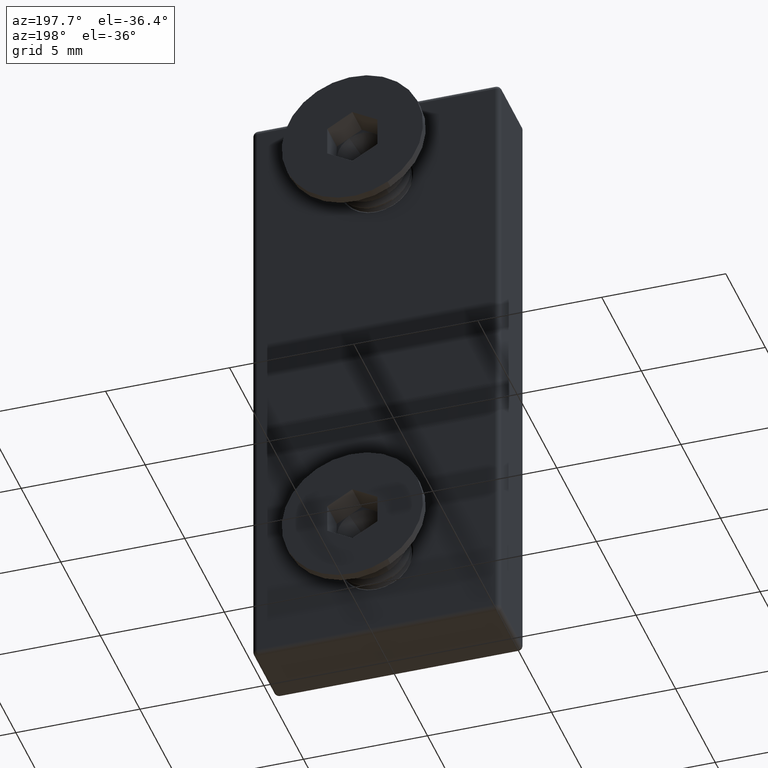
[diagram: clean part render]
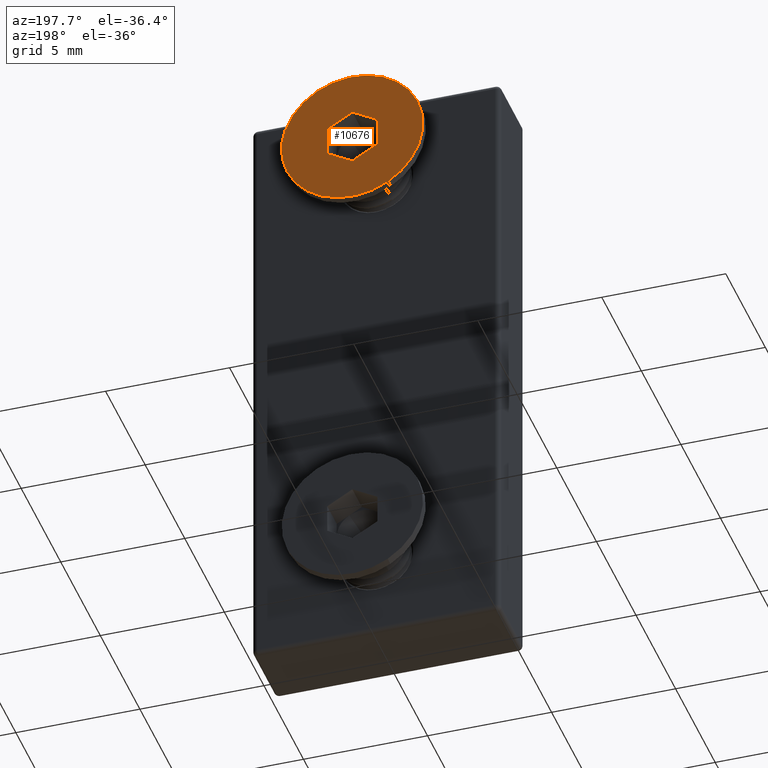
[diagram: same view with one face highlighted and labeled with its STEP entity id]
A machine part, auxiliary view. The second image highlights one B-rep face of the part: STEP entity #10676.
In plain terms, the highlighted planar face has unit normal (0, 1, 0).
Its self-contained STEP definition (entity closure, byte-faithful):
#47 = EDGE_CURVE ( 'NONE', #12261, #3351, #2192, .T. ) ;
#74 = VERTEX_POINT ( 'NONE', #12655 ) ;
#301 = DIRECTION ( 'NONE',  ( -1.000000000000000000, 0.0000000000000000000, 0.0000000000000000000 ) ) ;
#599 = EDGE_CURVE ( 'NONE', #10757, #11627, #731, .T. ) ;
#622 = ORIENTED_EDGE ( 'NONE', *, *, #47, .T. ) ;
#695 = DIRECTION ( 'NONE',  ( 0.0000000000000000000, -0.4999999999999995000, 0.8660254037844389300 ) ) ;
#731 = CIRCLE ( 'NONE', #1889, 2.850000000000041800 ) ;
#739 = ORIENTED_EDGE ( 'NONE', *, *, #4268, .T. ) ;
#837 = DIRECTION ( 'NONE',  ( 0.0000000000000000000, -5.551115123125701400E-017, 1.000000000000000000 ) ) ;
#872 = VERTEX_POINT ( 'NONE', #6641 ) ;
#928 = ORIENTED_EDGE ( 'NONE', *, *, #1771, .T. ) ;
#1190 = DIRECTION ( 'NONE',  ( 0.0000000000000000000, -5.551115123125701400E-017, 1.000000000000000000 ) ) ;
#1339 = EDGE_LOOP ( 'NONE', ( #9325, #10792 ) ) ;
#1367 = LINE ( 'NONE', #6488, #3752 ) ;
#1771 = EDGE_CURVE ( 'NONE', #10045, #74, #11079, .T. ) ;
#1830 = DIRECTION ( 'NONE',  ( 0.0000000000000000000, 1.000000000000000000, 4.440892098500565000E-016 ) ) ;
#1889 = AXIS2_PLACEMENT_3D ( 'NONE', #3603, #10754, #6472 ) ;
#2192 = LINE ( 'NONE', #4576, #9993 ) ;
#2586 = EDGE_CURVE ( 'NONE', #11627, #10757, #10328, .T. ) ;
#2826 = VECTOR ( 'NONE', #4001, 1000.000000000000000 ) ;
#2830 = EDGE_CURVE ( 'NONE', #9014, #12261, #6342, .T. ) ;
#3351 = VERTEX_POINT ( 'NONE', #4191 ) ;
#3382 = CARTESIAN_POINT ( 'NONE',  ( 0.0000000000000000000, 0.0000000000000000000, 0.0000000000000000000 ) ) ;
#3603 = CARTESIAN_POINT ( 'NONE',  ( 0.0000000000000000000, 0.0000000000000000000, 0.0000000000000000000 ) ) ;
#3665 = CARTESIAN_POINT ( 'NONE',  ( 0.0000000000000000000, -0.5831237718815209800, -1.010000000000000500 ) ) ;
#3752 = VECTOR ( 'NONE', #7524, 999.9999999999998900 ) ;
#4001 = DIRECTION ( 'NONE',  ( 0.0000000000000000000, 0.5000000000000004400, 0.8660254037844383700 ) ) ;
#4191 = CARTESIAN_POINT ( 'NONE',  ( 0.0000000000000000000, -1.166247543763041100, 0.0000000000000000000 ) ) ;
#4268 = EDGE_CURVE ( 'NONE', #872, #9014, #7885, .T. ) ;
#4576 = CARTESIAN_POINT ( 'NONE',  ( 0.0000000000000000000, -0.5831237718815166500, 1.010000000000016000 ) ) ;
#5165 = VECTOR ( 'NONE', #695, 1000.000000000000100 ) ;
#5211 = LINE ( 'NONE', #7077, #2826 ) ;
#5397 = CARTESIAN_POINT ( 'NONE',  ( 0.0000000000000000000, -1.582067810090848100E-016, 2.850000000000041800 ) ) ;
#5669 = FACE_OUTER_BOUND ( 'NONE', #1339, .T. ) ;
#5922 = DIRECTION ( 'NONE',  ( 0.0000000000000000000, -1.000000000000000000, -5.551115123125701400E-017 ) ) ;
#6306 = EDGE_LOOP ( 'NONE', ( #622, #6513, #928, #12768, #739, #6706 ) ) ;
#6342 = LINE ( 'NONE', #10866, #10803 ) ;
#6435 = VECTOR ( 'NONE', #1830, 1000.000000000000000 ) ;
#6472 = DIRECTION ( 'NONE',  ( 0.0000000000000000000, -5.551115123125701400E-017, 1.000000000000000000 ) ) ;
#6488 = CARTESIAN_POINT ( 'NONE',  ( 0.0000000000000000000, -1.166247543763041100, 0.0000000000000000000 ) ) ;
#6513 = ORIENTED_EDGE ( 'NONE', *, *, #9937, .T. ) ;
#6641 = CARTESIAN_POINT ( 'NONE',  ( 0.0000000000000000000, 1.166247543763068400, 8.673617379884035500E-015 ) ) ;
#6706 = ORIENTED_EDGE ( 'NONE', *, *, #2830, .T. ) ;
#6985 = CARTESIAN_POINT ( 'NONE',  ( 0.0000000000000000000, 1.166247543763068400, 8.673617379884035500E-015 ) ) ;
#7077 = CARTESIAN_POINT ( 'NONE',  ( 0.0000000000000000000, 0.5831237718815470700, -1.010000000000000500 ) ) ;
#7524 = DIRECTION ( 'NONE',  ( 0.0000000000000000000, 0.4999999999999993900, -0.8660254037844390400 ) ) ;
#7631 = DIRECTION ( 'NONE',  ( 0.0000000000000000000, -0.4999999999999998900, -0.8660254037844387100 ) ) ;
#7835 = AXIS2_PLACEMENT_3D ( 'NONE', #3382, #301, #1190 ) ;
#7885 = LINE ( 'NONE', #6985, #5165 ) ;
#8470 = CARTESIAN_POINT ( 'NONE',  ( 0.0000000000000000000, 0.5831237718815496200, 1.010000000000019500 ) ) ;
#8900 = DIRECTION ( 'NONE',  ( -1.000000000000000000, 0.0000000000000000000, 0.0000000000000000000 ) ) ;
#9014 = VERTEX_POINT ( 'NONE', #8470 ) ;
#9325 = ORIENTED_EDGE ( 'NONE', *, *, #599, .T. ) ;
#9412 = EDGE_CURVE ( 'NONE', #74, #872, #5211, .T. ) ;
#9430 = AXIS2_PLACEMENT_3D ( 'NONE', #11021, #8900, #837 ) ;
#9864 = CARTESIAN_POINT ( 'NONE',  ( 0.0000000000000000000, 5.072311187660783200E-016, -2.850000000000000100 ) ) ;
#9937 = EDGE_CURVE ( 'NONE', #3351, #10045, #1367, .T. ) ;
#9951 = CARTESIAN_POINT ( 'NONE',  ( 0.0000000000000000000, -0.5831237718815209800, -1.010000000000000500 ) ) ;
#9993 = VECTOR ( 'NONE', #7631, 1000.000000000000000 ) ;
#10045 = VERTEX_POINT ( 'NONE', #3665 ) ;
#10291 = FACE_BOUND ( 'NONE', #6306, .T. ) ;
#10328 = CIRCLE ( 'NONE', #9430, 2.850000000000041800 ) ;
#10676 = ADVANCED_FACE ( 'NONE', ( #5669, #10291 ), #12468, .T. ) ;
#10734 = CARTESIAN_POINT ( 'NONE',  ( 0.0000000000000000000, -0.5831237718815166500, 1.010000000000016000 ) ) ;
#10754 = DIRECTION ( 'NONE',  ( -1.000000000000000000, 0.0000000000000000000, 0.0000000000000000000 ) ) ;
#10757 = VERTEX_POINT ( 'NONE', #5397 ) ;
#10792 = ORIENTED_EDGE ( 'NONE', *, *, #2586, .T. ) ;
#10803 = VECTOR ( 'NONE', #5922, 1000.000000000000000 ) ;
#10866 = CARTESIAN_POINT ( 'NONE',  ( 0.0000000000000000000, 0.5831237718815496200, 1.010000000000019500 ) ) ;
#11021 = CARTESIAN_POINT ( 'NONE',  ( 0.0000000000000000000, 0.0000000000000000000, 0.0000000000000000000 ) ) ;
#11079 = LINE ( 'NONE', #9951, #6435 ) ;
#11627 = VERTEX_POINT ( 'NONE', #9864 ) ;
#12261 = VERTEX_POINT ( 'NONE', #10734 ) ;
#12468 = PLANE ( 'NONE',  #7835 ) ;
#12655 = CARTESIAN_POINT ( 'NONE',  ( 0.0000000000000000000, 0.5831237718815470700, -1.010000000000000500 ) ) ;
#12768 = ORIENTED_EDGE ( 'NONE', *, *, #9412, .T. ) ;